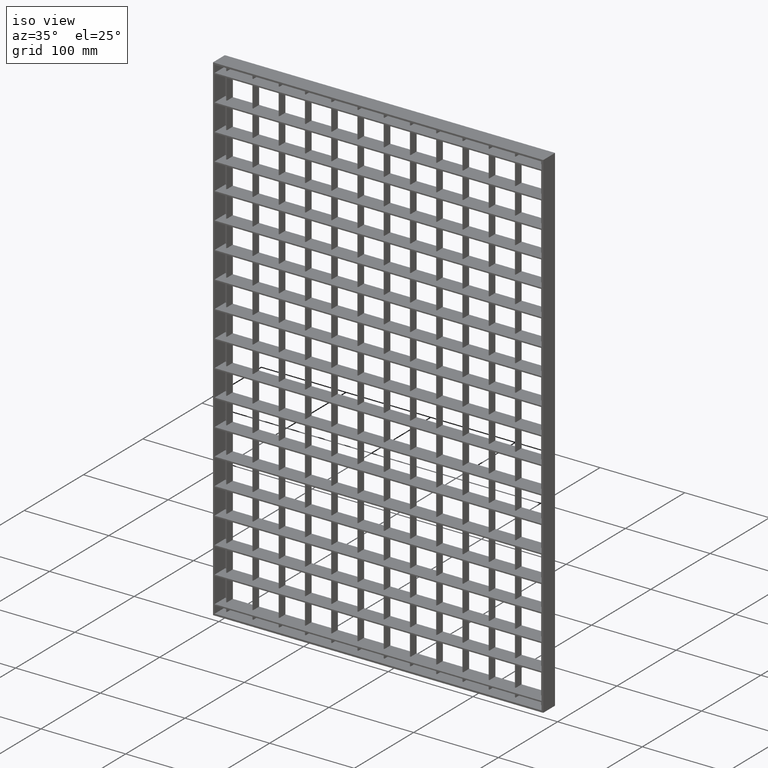
[diagram: clean part render]
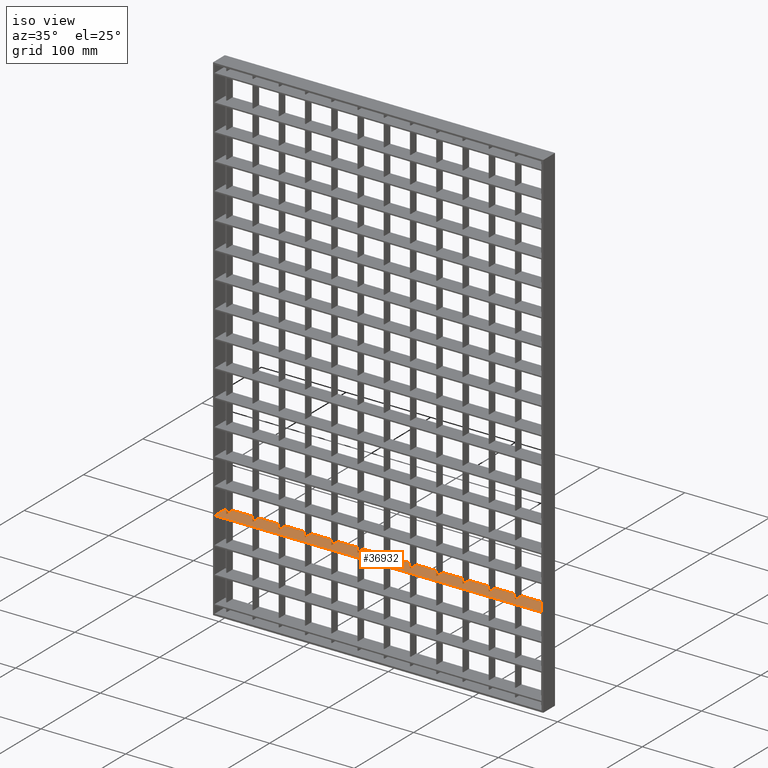
[diagram: same view with one face highlighted and labeled with its STEP entity id]
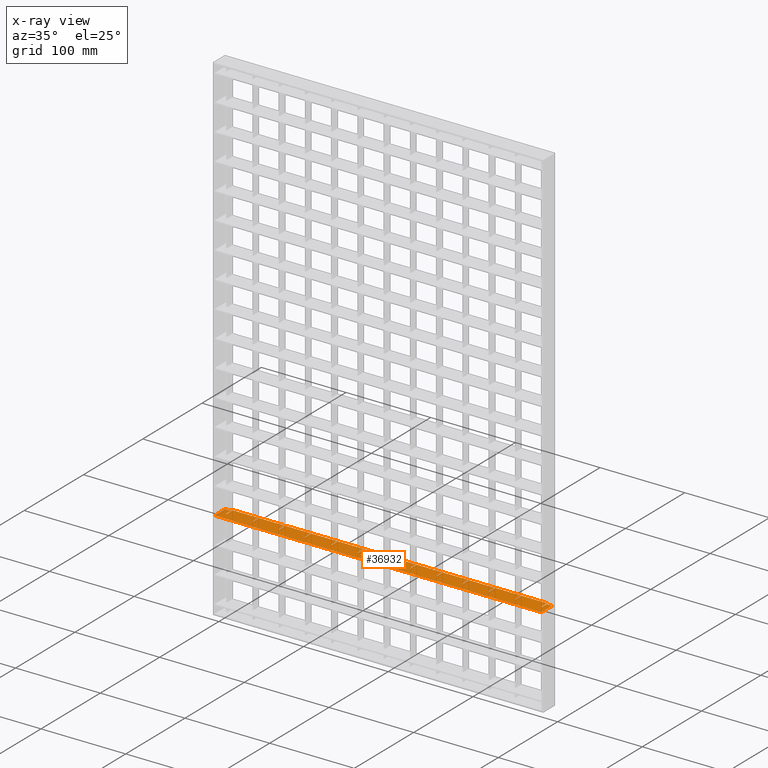
[diagram: x-ray of the same camera — body ghosted, the highlighted face saturated]
A machine part, iso view. The second image highlights one B-rep face of the part: STEP entity #36932.
The next image is the same camera in x-ray: the body ghosted, the highlighted face saturated — about 0% of this face is hidden behind the body in this view.
In plain terms, the highlighted planar face has unit normal (0, 0, -1).
Its self-contained STEP definition (entity closure, byte-faithful):
#75 = LINE ( 'NONE', #7138, #37852 ) ;
#119 = VECTOR ( 'NONE', #24408, 1000.000000000000000 ) ;
#349 = VECTOR ( 'NONE', #14450, 1000.000000000000000 ) ;
#431 = LINE ( 'NONE', #35232, #6725 ) ;
#468 = ORIENTED_EDGE ( 'NONE', *, *, #16384, .T. ) ;
#477 = CARTESIAN_POINT ( 'NONE',  ( 226.5000000000000000, 10.00000000000006600, -483.2499999999995500 ) ) ;
#498 = EDGE_CURVE ( 'NONE', #6342, #18673, #23920, .T. ) ;
#748 = ORIENTED_EDGE ( 'NONE', *, *, #28232, .T. ) ;
#903 = CARTESIAN_POINT ( 'NONE',  ( 288.5000000000001100, -9.999999999999879200, -483.2499999999995500 ) ) ;
#922 = DIRECTION ( 'NONE',  ( -1.000000000000000000, -3.061616997868383100E-016, 0.0000000000000000000 ) ) ;
#968 = VERTEX_POINT ( 'NONE', #29824 ) ;
#1166 = VERTEX_POINT ( 'NONE', #39686 ) ;
#1200 = ORIENTED_EDGE ( 'NONE', *, *, #32475, .F. ) ;
#1325 = AXIS2_PLACEMENT_3D ( 'NONE', #27476, #18428, #2864 ) ;
#1379 = LINE ( 'NONE', #1394, #32840 ) ;
#1394 = CARTESIAN_POINT ( 'NONE',  ( 408.0561711201315800, -6.938893903907228400E-015, -483.2499999999995500 ) ) ;
#1735 = ORIENTED_EDGE ( 'NONE', *, *, #25731, .T. ) ;
#1863 = EDGE_CURVE ( 'NONE', #22144, #35169, #28588, .T. ) ;
#1896 = VECTOR ( 'NONE', #23178, 1000.000000000000000 ) ;
#1942 = CARTESIAN_POINT ( 'NONE',  ( 408.0561711201315800, 7.632783294297951200E-014, -483.2499999999995500 ) ) ;
#1947 = DIRECTION ( 'NONE',  ( -1.000000000000000000, -3.061616997868383100E-016, 0.0000000000000000000 ) ) ;
#2015 = CARTESIAN_POINT ( 'NONE',  ( 225.5000000000000000, 10.00000000000006600, -483.2499999999995500 ) ) ;
#2079 = CARTESIAN_POINT ( 'NONE',  ( 2.000000000000003600, -10.00000000000000000, -483.2499999999995500 ) ) ;
#2130 = DIRECTION ( 'NONE',  ( 0.0000000000000000000, 1.000000000000000000, 0.0000000000000000000 ) ) ;
#2141 = EDGE_CURVE ( 'NONE', #22144, #968, #16480, .T. ) ;
#2166 = ORIENTED_EDGE ( 'NONE', *, *, #28526, .F. ) ;
#2251 = ORIENTED_EDGE ( 'NONE', *, *, #16209, .F. ) ;
#2262 = CARTESIAN_POINT ( 'NONE',  ( 225.5000000000000000, 1.006284330175756500E-015, -483.2499999999995500 ) ) ;
#2291 = EDGE_CURVE ( 'NONE', #24390, #39347, #30975, .T. ) ;
#2432 = CARTESIAN_POINT ( 'NONE',  ( 382.0000000000000000, 8.000000000000001800, -483.2499999999995500 ) ) ;
#2502 = CARTESIAN_POINT ( 'NONE',  ( 318.5000000000000000, -9.999999999999879200, -483.2499999999995500 ) ) ;
#2585 = DIRECTION ( 'NONE',  ( -1.000000000000000000, -3.061616997868383100E-016, 0.0000000000000000000 ) ) ;
#2751 = CARTESIAN_POINT ( 'NONE',  ( 408.0561711201315800, 10.00000000000012100, -483.2499999999995500 ) ) ;
#2864 = DIRECTION ( 'NONE',  ( -1.000000000000000000, 0.0000000000000000000, -0.0000000000000000000 ) ) ;
#3001 = VECTOR ( 'NONE', #34466, 1000.000000000000000 ) ;
#3010 = EDGE_CURVE ( 'NONE', #20909, #35940, #13504, .T. ) ;
#3067 = EDGE_CURVE ( 'NONE', #16187, #20271, #10114, .T. ) ;
#3131 = CARTESIAN_POINT ( 'NONE',  ( 256.5000000000000600, 1.006284330175756500E-015, -483.2499999999995500 ) ) ;
#3140 = CARTESIAN_POINT ( 'NONE',  ( 39.49999999999997900, -9.999999999999879200, -483.2499999999995500 ) ) ;
#3304 = CARTESIAN_POINT ( 'NONE',  ( 408.0561711201315800, 10.00000000000012100, -483.2499999999995500 ) ) ;
#3704 = ORIENTED_EDGE ( 'NONE', *, *, #10273, .F. ) ;
#4053 = ORIENTED_EDGE ( 'NONE', *, *, #39739, .T. ) ;
#4144 = CARTESIAN_POINT ( 'NONE',  ( 408.0561711201315800, 10.00000000000012100, -483.2499999999995500 ) ) ;
#4164 = CARTESIAN_POINT ( 'NONE',  ( 408.0561711201315800, 6.765421556309547700E-014, -483.2499999999995500 ) ) ;
#4199 = VERTEX_POINT ( 'NONE', #21484 ) ;
#4216 = ORIENTED_EDGE ( 'NONE', *, *, #5027, .F. ) ;
#4234 = CARTESIAN_POINT ( 'NONE',  ( 9.500000000000008900, -9.999999999999879200, -483.2499999999995500 ) ) ;
#4464 = DIRECTION ( 'NONE',  ( 0.0000000000000000000, 1.000000000000000000, 0.0000000000000000000 ) ) ;
#4521 = DIRECTION ( 'NONE',  ( 0.0000000000000000000, -1.000000000000000000, 0.0000000000000000000 ) ) ;
#4621 = CARTESIAN_POINT ( 'NONE',  ( 408.0561711201315800, -5.377642775528102000E-014, -483.2499999999995500 ) ) ;
#4778 = VECTOR ( 'NONE', #1947, 1000.000000000000000 ) ;
#4838 = ORIENTED_EDGE ( 'NONE', *, *, #8894, .T. ) ;
#4903 = DIRECTION ( 'NONE',  ( 1.000000000000000000, -3.061616997868381200E-016, 0.0000000000000000000 ) ) ;
#5027 = EDGE_CURVE ( 'NONE', #15636, #6342, #431, .T. ) ;
#5258 = CARTESIAN_POINT ( 'NONE',  ( 225.5000000000000000, -9.999999999999879200, -483.2499999999995500 ) ) ;
#5294 = VECTOR ( 'NONE', #39091, 1000.000000000000000 ) ;
#5299 = CARTESIAN_POINT ( 'NONE',  ( 257.5000000000000600, -9.999999999999879200, -483.2499999999995500 ) ) ;
#5329 = CARTESIAN_POINT ( 'NONE',  ( 381.5000000000000600, 10.00000000000011400, -483.2499999999995500 ) ) ;
#5371 = VECTOR ( 'NONE', #16578, 1000.000000000000000 ) ;
#5546 = VECTOR ( 'NONE', #4903, 1000.000000000000000 ) ;
#5718 = ORIENTED_EDGE ( 'NONE', *, *, #2141, .T. ) ;
#5897 = DIRECTION ( 'NONE',  ( -1.000000000000000000, -3.061616997868381200E-016, 0.0000000000000000000 ) ) ;
#5901 = DIRECTION ( 'NONE',  ( -1.000000000000000000, -3.061616997868383100E-016, 0.0000000000000000000 ) ) ;
#6267 = DIRECTION ( 'NONE',  ( 0.0000000000000000000, 1.000000000000000000, 0.0000000000000000000 ) ) ;
#6285 = ORIENTED_EDGE ( 'NONE', *, *, #3067, .T. ) ;
#6342 = VERTEX_POINT ( 'NONE', #2432 ) ;
#6379 = LINE ( 'NONE', #11090, #39261 ) ;
#6403 = EDGE_CURVE ( 'NONE', #38764, #14614, #36597, .T. ) ;
#6504 = VECTOR ( 'NONE', #35943, 1000.000000000000000 ) ;
#6725 = VECTOR ( 'NONE', #16680, 1000.000000000000000 ) ;
#6773 = VECTOR ( 'NONE', #8288, 1000.000000000000000 ) ;
#6947 = LINE ( 'NONE', #17308, #38856 ) ;
#7022 = VERTEX_POINT ( 'NONE', #15498 ) ;
#7073 = LINE ( 'NONE', #4164, #31286 ) ;
#7077 = ORIENTED_EDGE ( 'NONE', *, *, #13097, .T. ) ;
#7138 = CARTESIAN_POINT ( 'NONE',  ( 408.0561711201315800, 1.144917494144692700E-013, -483.2499999999995500 ) ) ;
#7183 = EDGE_CURVE ( 'NONE', #26269, #14457, #26420, .T. ) ;
#7464 = EDGE_CURVE ( 'NONE', #29757, #24390, #13326, .T. ) ;
#7584 = VERTEX_POINT ( 'NONE', #28433 ) ;
#7650 = VECTOR ( 'NONE', #16311, 1000.000000000000000 ) ;
#7751 = LINE ( 'NONE', #22626, #1896 ) ;
#7835 = EDGE_CURVE ( 'NONE', #14479, #13939, #35064, .T. ) ;
#7881 = LINE ( 'NONE', #25263, #3001 ) ;
#7909 = ORIENTED_EDGE ( 'NONE', *, *, #3010, .T. ) ;
#8003 = LINE ( 'NONE', #12202, #36036 ) ;
#8055 = EDGE_CURVE ( 'NONE', #20909, #29516, #21022, .T. ) ;
#8227 = ORIENTED_EDGE ( 'NONE', *, *, #39910, .F. ) ;
#8288 = DIRECTION ( 'NONE',  ( 1.000000000000000000, -3.061616997868381200E-016, 0.0000000000000000000 ) ) ;
#8332 = EDGE_CURVE ( 'NONE', #15627, #18673, #33096, .T. ) ;
#8374 = VERTEX_POINT ( 'NONE', #34200 ) ;
#8589 = VECTOR ( 'NONE', #18887, 1000.000000000000000 ) ;
#8667 = VECTOR ( 'NONE', #40018, 1000.000000000000000 ) ;
#8724 = CARTESIAN_POINT ( 'NONE',  ( 195.5000000000000000, -9.999999999999879200, -483.2499999999995500 ) ) ;
#8823 = VERTEX_POINT ( 'NONE', #12074 ) ;
#8833 = EDGE_CURVE ( 'NONE', #15627, #26269, #24822, .T. ) ;
#8894 = EDGE_CURVE ( 'NONE', #26414, #26426, #31063, .T. ) ;
#8916 = CARTESIAN_POINT ( 'NONE',  ( 102.5000000000000300, 0.0000000000000000000, -483.2499999999995500 ) ) ;
#9049 = CARTESIAN_POINT ( 'NONE',  ( 71.50000000000001400, 0.0000000000000000000, -483.2499999999995500 ) ) ;
#9159 = VECTOR ( 'NONE', #5897, 1000.000000000000000 ) ;
#9278 = DIRECTION ( 'NONE',  ( -1.000000000000000000, -3.061616997868383100E-016, 0.0000000000000000000 ) ) ;
#9416 = ORIENTED_EDGE ( 'NONE', *, *, #7464, .T. ) ;
#9442 = EDGE_CURVE ( 'NONE', #4199, #13887, #13594, .T. ) ;
#9552 = VERTEX_POINT ( 'NONE', #16328 ) ;
#9750 = VECTOR ( 'NONE', #10123, 1000.000000000000000 ) ;
#9983 = DIRECTION ( 'NONE',  ( -1.000000000000000000, -3.061616997868383100E-016, 0.0000000000000000000 ) ) ;
#10021 = ORIENTED_EDGE ( 'NONE', *, *, #7835, .F. ) ;
#10114 = LINE ( 'NONE', #36177, #4778 ) ;
#10123 = DIRECTION ( 'NONE',  ( 0.0000000000000000000, 1.000000000000000000, 0.0000000000000000000 ) ) ;
#10153 = VECTOR ( 'NONE', #35659, 1000.000000000000000 ) ;
#10195 = VECTOR ( 'NONE', #39188, 1000.000000000000000 ) ;
#10261 = DIRECTION ( 'NONE',  ( -1.000000000000000000, -3.061616997868381200E-016, 0.0000000000000000000 ) ) ;
#10273 = EDGE_CURVE ( 'NONE', #39822, #33044, #20330, .T. ) ;
#10282 = EDGE_LOOP ( 'NONE', ( #3704, #39733, #1200, #11805, #22045, #19678, #32365, #5718, #31692, #12131, #33285, #30411, #27348, #8227, #10021, #19728, #2251, #29273, #29217, #7909, #20860, #27356, #2166, #7077, #36927, #1735, #30989, #6285, #25940, #12128, #21220, #14136, #13946, #24094, #748, #4838, #468, #11922, #14471, #38976, #28681, #31841, #14738, #9416, #15224, #20875, #4053, #26792, #38421, #15136, #12618, #28404, #13202, #16155, #22498, #32129, #19010, #17018, #4216, #17034 ) ) ;
#10598 = DIRECTION ( 'NONE',  ( 0.0000000000000000000, -1.000000000000000000, 0.0000000000000000000 ) ) ;
#10955 = CARTESIAN_POINT ( 'NONE',  ( 101.4999999999999900, 1.554032748440078500E-015, -483.2499999999995500 ) ) ;
#11033 = EDGE_CURVE ( 'NONE', #15636, #33044, #13971, .T. ) ;
#11090 = CARTESIAN_POINT ( 'NONE',  ( 70.50000000000000000, -9.999999999999879200, -483.2499999999995500 ) ) ;
#11161 = VERTEX_POINT ( 'NONE', #16126 ) ;
#11353 = CARTESIAN_POINT ( 'NONE',  ( 408.0561711201315800, 1.040834085586084300E-013, -483.2499999999995500 ) ) ;
#11718 = LINE ( 'NONE', #4621, #17023 ) ;
#11773 = CARTESIAN_POINT ( 'NONE',  ( 226.5000000000000300, 1.809118201648508700E-015, -483.2499999999995500 ) ) ;
#11805 = ORIENTED_EDGE ( 'NONE', *, *, #19020, .T. ) ;
#11922 = ORIENTED_EDGE ( 'NONE', *, *, #13801, .T. ) ;
#12027 = CARTESIAN_POINT ( 'NONE',  ( 388.0000000000000000, -9.999999999999879200, -483.2499999999995500 ) ) ;
#12069 = CARTESIAN_POINT ( 'NONE',  ( 349.5000000000000600, -9.999999999999879200, -483.2499999999995500 ) ) ;
#12074 = CARTESIAN_POINT ( 'NONE',  ( 39.49999999999997900, 1.653965597400999300E-015, -483.2499999999995500 ) ) ;
#12128 = ORIENTED_EDGE ( 'NONE', *, *, #21206, .T. ) ;
#12131 = ORIENTED_EDGE ( 'NONE', *, *, #16211, .F. ) ;
#12194 = CARTESIAN_POINT ( 'NONE',  ( 101.5000000000000000, 10.00000000000000200, -483.2499999999995500 ) ) ;
#12202 = CARTESIAN_POINT ( 'NONE',  ( 408.0561711201315800, 10.00000000000012100, -483.2499999999995500 ) ) ;
#12351 = DIRECTION ( 'NONE',  ( -1.000000000000000000, -3.061616997868383100E-016, 0.0000000000000000000 ) ) ;
#12391 = EDGE_CURVE ( 'NONE', #9552, #26440, #28321, .T. ) ;
#12423 = CARTESIAN_POINT ( 'NONE',  ( 164.5000000000000000, 0.0000000000000000000, -483.2499999999995500 ) ) ;
#12496 = DIRECTION ( 'NONE',  ( -1.000000000000000000, -3.061616997868381200E-016, 0.0000000000000000000 ) ) ;
#12559 = VECTOR ( 'NONE', #5901, 1000.000000000000000 ) ;
#12618 = ORIENTED_EDGE ( 'NONE', *, *, #28403, .T. ) ;
#12656 = CARTESIAN_POINT ( 'NONE',  ( 71.50000000000001400, -9.999999999999879200, -483.2499999999995500 ) ) ;
#12755 = VERTEX_POINT ( 'NONE', #9049 ) ;
#12889 = EDGE_CURVE ( 'NONE', #35169, #27724, #13789, .T. ) ;
#13067 = CARTESIAN_POINT ( 'NONE',  ( 408.0561711201315800, 10.00000000000012100, -483.2499999999995500 ) ) ;
#13097 = EDGE_CURVE ( 'NONE', #29982, #23493, #29219, .T. ) ;
#13202 = ORIENTED_EDGE ( 'NONE', *, *, #19553, .F. ) ;
#13231 = DIRECTION ( 'NONE',  ( 0.0000000000000000000, 1.000000000000000000, 0.0000000000000000000 ) ) ;
#13326 = LINE ( 'NONE', #30360, #29250 ) ;
#13454 = VERTEX_POINT ( 'NONE', #24396 ) ;
#13504 = LINE ( 'NONE', #23221, #10153 ) ;
#13530 = VECTOR ( 'NONE', #22790, 1000.000000000000000 ) ;
#13594 = LINE ( 'NONE', #18924, #31994 ) ;
#13789 = LINE ( 'NONE', #22126, #38444 ) ;
#13801 = EDGE_CURVE ( 'NONE', #19812, #38764, #16603, .T. ) ;
#13856 = CARTESIAN_POINT ( 'NONE',  ( 40.49999999999997900, 0.0000000000000000000, -483.2499999999995500 ) ) ;
#13868 = DIRECTION ( 'NONE',  ( -1.000000000000000000, -3.061616997868383100E-016, 0.0000000000000000000 ) ) ;
#13887 = VERTEX_POINT ( 'NONE', #38812 ) ;
#13911 = CARTESIAN_POINT ( 'NONE',  ( 256.5000000000000600, -9.999999999999879200, -483.2499999999995500 ) ) ;
#13939 = VERTEX_POINT ( 'NONE', #36651 ) ;
#13946 = ORIENTED_EDGE ( 'NONE', *, *, #9442, .T. ) ;
#13971 = LINE ( 'NONE', #3304, #12559 ) ;
#14128 = VECTOR ( 'NONE', #12351, 1000.000000000000000 ) ;
#14136 = ORIENTED_EDGE ( 'NONE', *, *, #32818, .T. ) ;
#14217 = LINE ( 'NONE', #39898, #38376 ) ;
#14224 = CARTESIAN_POINT ( 'NONE',  ( 408.0561711201315800, -2.602085213965210600E-014, -483.2499999999995500 ) ) ;
#14405 = CARTESIAN_POINT ( 'NONE',  ( 382.0000000000000000, 10.00000000000000400, -483.2499999999995500 ) ) ;
#14450 = DIRECTION ( 'NONE',  ( 0.0000000000000000000, -1.000000000000000000, 0.0000000000000000000 ) ) ;
#14457 = VERTEX_POINT ( 'NONE', #31730 ) ;
#14470 = DIRECTION ( 'NONE',  ( 0.0000000000000000000, 1.000000000000000000, 0.0000000000000000000 ) ) ;
#14471 = ORIENTED_EDGE ( 'NONE', *, *, #6403, .T. ) ;
#14479 = VERTEX_POINT ( 'NONE', #16291 ) ;
#14614 = VERTEX_POINT ( 'NONE', #12194 ) ;
#14738 = ORIENTED_EDGE ( 'NONE', *, *, #19664, .T. ) ;
#15136 = ORIENTED_EDGE ( 'NONE', *, *, #27633, .T. ) ;
#15224 = ORIENTED_EDGE ( 'NONE', *, *, #2291, .T. ) ;
#15278 = VECTOR ( 'NONE', #13231, 1000.000000000000000 ) ;
#15334 = DIRECTION ( 'NONE',  ( 0.0000000000000000000, -1.000000000000000000, 0.0000000000000000000 ) ) ;
#15367 = CARTESIAN_POINT ( 'NONE',  ( 163.5000000000000000, 10.00000000000000200, -483.2499999999995500 ) ) ;
#15385 = DIRECTION ( 'NONE',  ( 0.0000000000000000000, 1.000000000000000000, 0.0000000000000000000 ) ) ;
#15435 = EDGE_CURVE ( 'NONE', #35216, #16187, #24741, .T. ) ;
#15453 = CARTESIAN_POINT ( 'NONE',  ( 288.5000000000001100, 10.00000000000008500, -483.2499999999995500 ) ) ;
#15491 = EDGE_CURVE ( 'NONE', #30804, #17739, #22792, .T. ) ;
#15498 = CARTESIAN_POINT ( 'NONE',  ( 70.49999999999995700, 7.366374349321292100E-016, -483.2499999999995500 ) ) ;
#15627 = VERTEX_POINT ( 'NONE', #23487 ) ;
#15636 = VERTEX_POINT ( 'NONE', #14405 ) ;
#15701 = VERTEX_POINT ( 'NONE', #23879 ) ;
#15763 = LINE ( 'NONE', #3140, #34652 ) ;
#15992 = VERTEX_POINT ( 'NONE', #22490 ) ;
#16061 = LINE ( 'NONE', #32461, #19471 ) ;
#16077 = EDGE_CURVE ( 'NONE', #14614, #23738, #7751, .T. ) ;
#16126 = CARTESIAN_POINT ( 'NONE',  ( 195.5000000000000000, 0.0000000000000000000, -483.2499999999995500 ) ) ;
#16144 = EDGE_CURVE ( 'NONE', #17739, #37171, #33882, .T. ) ;
#16155 = ORIENTED_EDGE ( 'NONE', *, *, #22267, .F. ) ;
#16187 = VERTEX_POINT ( 'NONE', #38416 ) ;
#16209 = EDGE_CURVE ( 'NONE', #15701, #19945, #21748, .T. ) ;
#16211 = EDGE_CURVE ( 'NONE', #7584, #32675, #37725, .T. ) ;
#16266 = EDGE_CURVE ( 'NONE', #29516, #15701, #21529, .T. ) ;
#16291 = CARTESIAN_POINT ( 'NONE',  ( 287.5000000000001100, 10.00000000000008500, -483.2499999999995500 ) ) ;
#16306 = VECTOR ( 'NONE', #37936, 1000.000000000000000 ) ;
#16311 = DIRECTION ( 'NONE',  ( -1.000000000000000000, -3.061616997868381200E-016, 0.0000000000000000000 ) ) ;
#16315 = DIRECTION ( 'NONE',  ( -1.000000000000000000, -3.061616997868381200E-016, 0.0000000000000000000 ) ) ;
#16328 = CARTESIAN_POINT ( 'NONE',  ( 288.5000000000001100, 1.909051050609410800E-015, -483.2499999999995500 ) ) ;
#16369 = CARTESIAN_POINT ( 'NONE',  ( 9.500000000000008900, 0.0000000000000000000, -483.2499999999995500 ) ) ;
#16384 = EDGE_CURVE ( 'NONE', #26426, #19812, #14217, .T. ) ;
#16480 = LINE ( 'NONE', #38256, #25703 ) ;
#16482 = CARTESIAN_POINT ( 'NONE',  ( 8.500000000000007100, -9.999999999999879200, -483.2499999999995500 ) ) ;
#16578 = DIRECTION ( 'NONE',  ( -1.000000000000000000, -3.061616997868383100E-016, 0.0000000000000000000 ) ) ;
#16603 = LINE ( 'NONE', #32757, #35486 ) ;
#16680 = DIRECTION ( 'NONE',  ( 0.0000000000000000000, -1.000000000000000000, 0.0000000000000000000 ) ) ;
#17018 = ORIENTED_EDGE ( 'NONE', *, *, #498, .F. ) ;
#17023 = VECTOR ( 'NONE', #39080, 1000.000000000000000 ) ;
#17034 = ORIENTED_EDGE ( 'NONE', *, *, #11033, .T. ) ;
#17077 = DIRECTION ( 'NONE',  ( 1.000000000000000000, -3.061616997868381200E-016, 0.0000000000000000000 ) ) ;
#17240 = VECTOR ( 'NONE', #18661, 1000.000000000000000 ) ;
#17308 = CARTESIAN_POINT ( 'NONE',  ( 2.000000000000003600, 8.000000000000001800, -483.2499999999995500 ) ) ;
#17399 = VECTOR ( 'NONE', #14470, 1000.000000000000000 ) ;
#17652 = EDGE_CURVE ( 'NONE', #15992, #33770, #39486, .T. ) ;
#17739 = VERTEX_POINT ( 'NONE', #22347 ) ;
#17925 = VERTEX_POINT ( 'NONE', #20197 ) ;
#18037 = PLANE ( 'NONE',  #1325 ) ;
#18142 = VECTOR ( 'NONE', #9278, 1000.000000000000000 ) ;
#18337 = LINE ( 'NONE', #8724, #30966 ) ;
#18428 = DIRECTION ( 'NONE',  ( 0.0000000000000000000, 0.0000000000000000000, -1.000000000000000000 ) ) ;
#18449 = VECTOR ( 'NONE', #34247, 1000.000000000000000 ) ;
#18537 = EDGE_CURVE ( 'NONE', #12755, #7022, #30684, .T. ) ;
#18563 = VECTOR ( 'NONE', #32057, 1000.000000000000000 ) ;
#18661 = DIRECTION ( 'NONE',  ( 0.0000000000000000000, 1.000000000000000000, 0.0000000000000000000 ) ) ;
#18673 = VERTEX_POINT ( 'NONE', #29973 ) ;
#18801 = CARTESIAN_POINT ( 'NONE',  ( 101.5000000000000300, -9.999999999999879200, -483.2499999999995500 ) ) ;
#18822 = DIRECTION ( 'NONE',  ( -1.000000000000000000, -3.061616997868383100E-016, 0.0000000000000000000 ) ) ;
#18887 = DIRECTION ( 'NONE',  ( 0.0000000000000000000, 1.000000000000000000, 0.0000000000000000000 ) ) ;
#18924 = CARTESIAN_POINT ( 'NONE',  ( 133.5000000000000000, -9.999999999999879200, -483.2499999999995500 ) ) ;
#19010 = ORIENTED_EDGE ( 'NONE', *, *, #8332, .T. ) ;
#19020 = EDGE_CURVE ( 'NONE', #8374, #33471, #30167, .T. ) ;
#19027 = CARTESIAN_POINT ( 'NONE',  ( 256.5000000000000600, 10.00000000000007500, -483.2499999999995500 ) ) ;
#19096 = CARTESIAN_POINT ( 'NONE',  ( 194.5000000000000000, 2.271495212987119600E-015, -483.2499999999995500 ) ) ;
#19471 = VECTOR ( 'NONE', #25990, 1000.000000000000000 ) ;
#19553 = EDGE_CURVE ( 'NONE', #1166, #33770, #16061, .T. ) ;
#19568 = CARTESIAN_POINT ( 'NONE',  ( 194.5000000000000000, -9.999999999999879200, -483.2499999999995500 ) ) ;
#19664 = EDGE_CURVE ( 'NONE', #7022, #29757, #6379, .T. ) ;
#19678 = ORIENTED_EDGE ( 'NONE', *, *, #12889, .F. ) ;
#19728 = ORIENTED_EDGE ( 'NONE', *, *, #38420, .T. ) ;
#19806 = CARTESIAN_POINT ( 'NONE',  ( 195.5000000000000000, 10.00000000000005500, -483.2499999999995500 ) ) ;
#19812 = VERTEX_POINT ( 'NONE', #8916 ) ;
#19838 = CARTESIAN_POINT ( 'NONE',  ( 408.0561711201315800, 10.00000000000012100, -483.2499999999995500 ) ) ;
#19935 = CARTESIAN_POINT ( 'NONE',  ( 408.0561711201315800, -3.469446951953614200E-014, -483.2499999999995500 ) ) ;
#19945 = VERTEX_POINT ( 'NONE', #37018 ) ;
#19985 = VERTEX_POINT ( 'NONE', #12423 ) ;
#20197 = CARTESIAN_POINT ( 'NONE',  ( 8.500000000000007100, 8.365702838930499200E-016, -483.2499999999995500 ) ) ;
#20271 = VERTEX_POINT ( 'NONE', #38197 ) ;
#20330 = LINE ( 'NONE', #36371, #17399 ) ;
#20860 = ORIENTED_EDGE ( 'NONE', *, *, #39003, .F. ) ;
#20875 = ORIENTED_EDGE ( 'NONE', *, *, #31635, .T. ) ;
#20909 = VERTEX_POINT ( 'NONE', #19027 ) ;
#20926 = VERTEX_POINT ( 'NONE', #28459 ) ;
#21022 = LINE ( 'NONE', #13911, #18563 ) ;
#21140 = DIRECTION ( 'NONE',  ( 0.0000000000000000000, -1.000000000000000000, 0.0000000000000000000 ) ) ;
#21206 = EDGE_CURVE ( 'NONE', #19985, #13454, #39110, .T. ) ;
#21220 = ORIENTED_EDGE ( 'NONE', *, *, #39119, .T. ) ;
#21245 = CARTESIAN_POINT ( 'NONE',  ( 8.000000000000007100, 9.999999999999998200, -483.2499999999995500 ) ) ;
#21336 = EDGE_CURVE ( 'NONE', #23738, #12755, #36215, .T. ) ;
#21484 = CARTESIAN_POINT ( 'NONE',  ( 133.5000000000000000, 10.00000000000003900, -483.2499999999995500 ) ) ;
#21529 = LINE ( 'NONE', #23699, #5546 ) ;
#21587 = CARTESIAN_POINT ( 'NONE',  ( 39.50000000000000700, 10.00000000000000200, -483.2499999999995500 ) ) ;
#21748 = LINE ( 'NONE', #5299, #5294 ) ;
#22045 = ORIENTED_EDGE ( 'NONE', *, *, #25715, .F. ) ;
#22126 = CARTESIAN_POINT ( 'NONE',  ( 408.0561711201315800, -1.561251128379126400E-014, -483.2499999999995500 ) ) ;
#22144 = VERTEX_POINT ( 'NONE', #31922 ) ;
#22176 = VECTOR ( 'NONE', #15334, 1000.000000000000000 ) ;
#22261 = DIRECTION ( 'NONE',  ( 1.000000000000000000, -3.061616997868381200E-016, 0.0000000000000000000 ) ) ;
#22267 = EDGE_CURVE ( 'NONE', #14457, #1166, #6947, .T. ) ;
#22347 = CARTESIAN_POINT ( 'NONE',  ( 9.500000000000008900, 10.00000000000000000, -483.2499999999995500 ) ) ;
#22490 = CARTESIAN_POINT ( 'NONE',  ( 8.500000000000007100, 10.00000000000000200, -483.2499999999995500 ) ) ;
#22498 = ORIENTED_EDGE ( 'NONE', *, *, #7183, .F. ) ;
#22612 = LINE ( 'NONE', #28065, #16306 ) ;
#22626 = CARTESIAN_POINT ( 'NONE',  ( 408.0561711201315800, 10.00000000000012100, -483.2499999999995500 ) ) ;
#22790 = DIRECTION ( 'NONE',  ( -1.000000000000000000, -3.061616997868383100E-016, 0.0000000000000000000 ) ) ;
#22792 = LINE ( 'NONE', #4144, #5371 ) ;
#22985 = VECTOR ( 'NONE', #15385, 1000.000000000000000 ) ;
#23101 = CARTESIAN_POINT ( 'NONE',  ( 2.000000000000003600, -10.00000000000000000, -483.2499999999995500 ) ) ;
#23158 = CARTESIAN_POINT ( 'NONE',  ( 70.50000000000000000, 10.00000000000000200, -483.2499999999995500 ) ) ;
#23178 = DIRECTION ( 'NONE',  ( -1.000000000000000000, -3.061616997868383100E-016, 0.0000000000000000000 ) ) ;
#23221 = CARTESIAN_POINT ( 'NONE',  ( 408.0561711201315800, 10.00000000000012100, -483.2499999999995500 ) ) ;
#23487 = CARTESIAN_POINT ( 'NONE',  ( 388.0000000000000000, -10.00000000000000400, -483.2499999999995500 ) ) ;
#23493 = VERTEX_POINT ( 'NONE', #19806 ) ;
#23538 = LINE ( 'NONE', #28892, #15278 ) ;
#23676 = LINE ( 'NONE', #34105, #8667 ) ;
#23699 = CARTESIAN_POINT ( 'NONE',  ( 408.0561711201315800, -4.510281037539698400E-014, -483.2499999999995500 ) ) ;
#23731 = VERTEX_POINT ( 'NONE', #30827 ) ;
#23738 = VERTEX_POINT ( 'NONE', #27827 ) ;
#23879 = CARTESIAN_POINT ( 'NONE',  ( 257.5000000000000600, 9.917228881405591400E-016, -483.2499999999995500 ) ) ;
#23920 = LINE ( 'NONE', #30282, #35527 ) ;
#24094 = ORIENTED_EDGE ( 'NONE', *, *, #35845, .T. ) ;
#24390 = VERTEX_POINT ( 'NONE', #31178 ) ;
#24396 = CARTESIAN_POINT ( 'NONE',  ( 163.5000000000000000, 1.454099899479170100E-015, -483.2499999999995500 ) ) ;
#24408 = DIRECTION ( 'NONE',  ( -1.000000000000000000, -3.061616997868383100E-016, 0.0000000000000000000 ) ) ;
#24526 = EDGE_CURVE ( 'NONE', #35554, #39822, #1379, .T. ) ;
#24741 = LINE ( 'NONE', #19568, #9750 ) ;
#24822 = LINE ( 'NONE', #36944, #31108 ) ;
#24893 = DIRECTION ( 'NONE',  ( 0.0000000000000000000, -1.000000000000000000, 0.0000000000000000000 ) ) ;
#24921 = CARTESIAN_POINT ( 'NONE',  ( 408.0561711201315800, 10.00000000000012100, -483.2499999999995500 ) ) ;
#25201 = CARTESIAN_POINT ( 'NONE',  ( 350.5000000000000600, 2.008983899570346800E-015, -483.2499999999995500 ) ) ;
#25204 = CARTESIAN_POINT ( 'NONE',  ( 408.0561711201315800, 10.00000000000012100, -483.2499999999995500 ) ) ;
#25263 = CARTESIAN_POINT ( 'NONE',  ( 164.5000000000000000, -9.999999999999879200, -483.2499999999995500 ) ) ;
#25333 = VECTOR ( 'NONE', #13868, 1000.000000000000000 ) ;
#25703 = VECTOR ( 'NONE', #922, 1000.000000000000000 ) ;
#25715 = EDGE_CURVE ( 'NONE', #27724, #33471, #23538, .T. ) ;
#25731 = EDGE_CURVE ( 'NONE', #11161, #35216, #7073, .T. ) ;
#25845 = VECTOR ( 'NONE', #36619, 1000.000000000000000 ) ;
#25923 = CARTESIAN_POINT ( 'NONE',  ( 408.0561711201315800, 10.00000000000012100, -483.2499999999995500 ) ) ;
#25940 = ORIENTED_EDGE ( 'NONE', *, *, #31513, .T. ) ;
#25990 = DIRECTION ( 'NONE',  ( 0.0000000000000000000, 1.000000000000000000, 0.0000000000000000000 ) ) ;
#26269 = VERTEX_POINT ( 'NONE', #2079 ) ;
#26273 = DIRECTION ( 'NONE',  ( -1.000000000000000000, -3.061616997868381200E-016, 0.0000000000000000000 ) ) ;
#26414 = VERTEX_POINT ( 'NONE', #34024 ) ;
#26420 = LINE ( 'NONE', #23101, #36560 ) ;
#26426 = VERTEX_POINT ( 'NONE', #36571 ) ;
#26440 = VERTEX_POINT ( 'NONE', #15453 ) ;
#26792 = ORIENTED_EDGE ( 'NONE', *, *, #15491, .T. ) ;
#27287 = VECTOR ( 'NONE', #29960, 1000.000000000000000 ) ;
#27297 = DIRECTION ( 'NONE',  ( 1.000000000000000000, 0.0000000000000000000, 0.0000000000000000000 ) ) ;
#27331 = VECTOR ( 'NONE', #17077, 1000.000000000000000 ) ;
#27348 = ORIENTED_EDGE ( 'NONE', *, *, #12391, .F. ) ;
#27356 = ORIENTED_EDGE ( 'NONE', *, *, #33613, .F. ) ;
#27476 = CARTESIAN_POINT ( 'NONE',  ( 408.0561711201315800, -9.999999999999879200, -483.2499999999995500 ) ) ;
#27633 = EDGE_CURVE ( 'NONE', #37171, #17925, #38703, .T. ) ;
#27669 = CARTESIAN_POINT ( 'NONE',  ( 226.5000000000000000, -9.999999999999879200, -483.2499999999995500 ) ) ;
#27724 = VERTEX_POINT ( 'NONE', #25201 ) ;
#27827 = CARTESIAN_POINT ( 'NONE',  ( 71.50000000000005700, 10.00000000000002000, -483.2499999999995500 ) ) ;
#28065 = CARTESIAN_POINT ( 'NONE',  ( 163.5000000000000000, -9.999999999999879200, -483.2499999999995500 ) ) ;
#28232 = EDGE_CURVE ( 'NONE', #23731, #26414, #23676, .T. ) ;
#28321 = LINE ( 'NONE', #903, #36112 ) ;
#28403 = EDGE_CURVE ( 'NONE', #17925, #15992, #39602, .T. ) ;
#28404 = ORIENTED_EDGE ( 'NONE', *, *, #17652, .T. ) ;
#28411 = LINE ( 'NONE', #27669, #8589 ) ;
#28433 = CARTESIAN_POINT ( 'NONE',  ( 318.5000000000000000, 1.006284330175756500E-015, -483.2499999999995500 ) ) ;
#28459 = CARTESIAN_POINT ( 'NONE',  ( 318.5000000000000000, 10.00000000000009400, -483.2499999999995500 ) ) ;
#28526 = EDGE_CURVE ( 'NONE', #29982, #38910, #34276, .T. ) ;
#28588 = LINE ( 'NONE', #12069, #18449 ) ;
#28679 = LINE ( 'NONE', #2751, #119 ) ;
#28681 = ORIENTED_EDGE ( 'NONE', *, *, #21336, .T. ) ;
#28704 = DIRECTION ( 'NONE',  ( 1.000000000000000000, -3.061616997868381200E-016, 0.0000000000000000000 ) ) ;
#28709 = LINE ( 'NONE', #2502, #27287 ) ;
#28802 = LINE ( 'NONE', #19935, #27331 ) ;
#28806 = VERTEX_POINT ( 'NONE', #15367 ) ;
#28892 = CARTESIAN_POINT ( 'NONE',  ( 350.5000000000000600, -9.999999999999879200, -483.2499999999995500 ) ) ;
#28958 = VECTOR ( 'NONE', #4464, 1000.000000000000000 ) ;
#29032 = VECTOR ( 'NONE', #35811, 1000.000000000000000 ) ;
#29217 = ORIENTED_EDGE ( 'NONE', *, *, #8055, .F. ) ;
#29219 = LINE ( 'NONE', #13067, #33605 ) ;
#29250 = VECTOR ( 'NONE', #39562, 1000.000000000000000 ) ;
#29273 = ORIENTED_EDGE ( 'NONE', *, *, #16266, .F. ) ;
#29459 = DIRECTION ( 'NONE',  ( 1.000000000000000000, 0.0000000000000000000, 0.0000000000000000000 ) ) ;
#29516 = VERTEX_POINT ( 'NONE', #3131 ) ;
#29556 = DIRECTION ( 'NONE',  ( 0.0000000000000000000, 1.000000000000000000, 0.0000000000000000000 ) ) ;
#29575 = CARTESIAN_POINT ( 'NONE',  ( 380.5000000000000600, -9.999999999999879200, -483.2499999999995500 ) ) ;
#29593 = CARTESIAN_POINT ( 'NONE',  ( 40.49999999999997900, -9.999999999999879200, -483.2499999999995500 ) ) ;
#29757 = VERTEX_POINT ( 'NONE', #23158 ) ;
#29824 = CARTESIAN_POINT ( 'NONE',  ( 319.5000000000000000, 10.00000000000009400, -483.2499999999995500 ) ) ;
#29943 = VERTEX_POINT ( 'NONE', #11773 ) ;
#29960 = DIRECTION ( 'NONE',  ( 0.0000000000000000000, -1.000000000000000000, 0.0000000000000000000 ) ) ;
#29973 = CARTESIAN_POINT ( 'NONE',  ( 387.9999999999998900, 8.000000000000001800, -483.2499999999996000 ) ) ;
#29982 = VERTEX_POINT ( 'NONE', #2015 ) ;
#30167 = LINE ( 'NONE', #19838, #25333 ) ;
#30282 = CARTESIAN_POINT ( 'NONE',  ( 194.9999999999999700, 8.000000000000001800, -483.2499999999995500 ) ) ;
#30360 = CARTESIAN_POINT ( 'NONE',  ( 408.0561711201315800, 10.00000000000012100, -483.2499999999995500 ) ) ;
#30411 = ORIENTED_EDGE ( 'NONE', *, *, #40156, .T. ) ;
#30683 = EDGE_CURVE ( 'NONE', #20926, #7584, #28709, .T. ) ;
#30684 = LINE ( 'NONE', #11353, #6504 ) ;
#30804 = VERTEX_POINT ( 'NONE', #21587 ) ;
#30827 = CARTESIAN_POINT ( 'NONE',  ( 132.5000000000000000, 6.367045859712331600E-016, -483.2499999999995500 ) ) ;
#30966 = VECTOR ( 'NONE', #37099, 1000.000000000000000 ) ;
#30975 = LINE ( 'NONE', #29593, #10195 ) ;
#30989 = ORIENTED_EDGE ( 'NONE', *, *, #15435, .T. ) ;
#31063 = LINE ( 'NONE', #24921, #14128 ) ;
#31108 = VECTOR ( 'NONE', #18822, 1000.000000000000000 ) ;
#31178 = CARTESIAN_POINT ( 'NONE',  ( 40.50000000000003600, 10.00000000000000900, -483.2499999999995500 ) ) ;
#31286 = VECTOR ( 'NONE', #16315, 1000.000000000000000 ) ;
#31443 = VECTOR ( 'NONE', #10598, 1000.000000000000000 ) ;
#31513 = EDGE_CURVE ( 'NONE', #20271, #19985, #7881, .T. ) ;
#31635 = EDGE_CURVE ( 'NONE', #39347, #8823, #75, .T. ) ;
#31692 = ORIENTED_EDGE ( 'NONE', *, *, #37603, .F. ) ;
#31730 = CARTESIAN_POINT ( 'NONE',  ( 2.000000000000003600, 8.000000000000001800, -483.2499999999995500 ) ) ;
#31841 = ORIENTED_EDGE ( 'NONE', *, *, #18537, .T. ) ;
#31922 = CARTESIAN_POINT ( 'NONE',  ( 349.5000000000000600, 10.00000000000010500, -483.2499999999995500 ) ) ;
#31935 = VECTOR ( 'NONE', #12496, 1000.000000000000000 ) ;
#31994 = VECTOR ( 'NONE', #24893, 1000.000000000000000 ) ;
#32057 = DIRECTION ( 'NONE',  ( 0.0000000000000000000, -1.000000000000000000, 0.0000000000000000000 ) ) ;
#32129 = ORIENTED_EDGE ( 'NONE', *, *, #8833, .F. ) ;
#32334 = LINE ( 'NONE', #34089, #7650 ) ;
#32365 = ORIENTED_EDGE ( 'NONE', *, *, #1863, .F. ) ;
#32461 = CARTESIAN_POINT ( 'NONE',  ( 7.999999999999996400, 8.000000000000001800, -483.2499999999995500 ) ) ;
#32475 = EDGE_CURVE ( 'NONE', #8374, #35554, #40173, .T. ) ;
#32650 = CARTESIAN_POINT ( 'NONE',  ( 287.5000000000001100, -9.999999999999879200, -483.2499999999995500 ) ) ;
#32675 = VERTEX_POINT ( 'NONE', #37403 ) ;
#32757 = CARTESIAN_POINT ( 'NONE',  ( 408.0561711201315800, 9.540979117872439000E-014, -483.2499999999995500 ) ) ;
#32818 = EDGE_CURVE ( 'NONE', #28806, #4199, #39671, .T. ) ;
#32840 = VECTOR ( 'NONE', #28704, 1000.000000000000000 ) ;
#33044 = VERTEX_POINT ( 'NONE', #5329 ) ;
#33096 = LINE ( 'NONE', #12027, #25845 ) ;
#33128 = EDGE_CURVE ( 'NONE', #23493, #11161, #18337, .T. ) ;
#33285 = ORIENTED_EDGE ( 'NONE', *, *, #30683, .F. ) ;
#33471 = VERTEX_POINT ( 'NONE', #34922 ) ;
#33605 = VECTOR ( 'NONE', #9983, 1000.000000000000000 ) ;
#33613 = EDGE_CURVE ( 'NONE', #38910, #29943, #11718, .T. ) ;
#33770 = VERTEX_POINT ( 'NONE', #21245 ) ;
#33882 = LINE ( 'NONE', #4234, #31443 ) ;
#34019 = CARTESIAN_POINT ( 'NONE',  ( 408.0561711201315800, 1.231653667943533000E-013, -483.2499999999995500 ) ) ;
#34024 = CARTESIAN_POINT ( 'NONE',  ( 132.5000000000000000, 10.00000000000000200, -483.2499999999995500 ) ) ;
#34089 = CARTESIAN_POINT ( 'NONE',  ( 408.0561711201315800, 8.500145032286354800E-014, -483.2499999999995500 ) ) ;
#34105 = CARTESIAN_POINT ( 'NONE',  ( 132.5000000000000000, -9.999999999999879200, -483.2499999999995500 ) ) ;
#34200 = CARTESIAN_POINT ( 'NONE',  ( 380.5000000000000600, 10.00000000000011400, -483.2499999999995500 ) ) ;
#34247 = DIRECTION ( 'NONE',  ( 0.0000000000000000000, -1.000000000000000000, 0.0000000000000000000 ) ) ;
#34276 = LINE ( 'NONE', #5258, #349 ) ;
#34466 = DIRECTION ( 'NONE',  ( 0.0000000000000000000, -1.000000000000000000, 0.0000000000000000000 ) ) ;
#34591 = VECTOR ( 'NONE', #4521, 1000.000000000000000 ) ;
#34652 = VECTOR ( 'NONE', #6267, 1000.000000000000000 ) ;
#34922 = CARTESIAN_POINT ( 'NONE',  ( 350.5000000000000600, 10.00000000000010500, -483.2499999999995500 ) ) ;
#35018 = CARTESIAN_POINT ( 'NONE',  ( 349.5000000000000600, 1.006284330175756500E-015, -483.2499999999995500 ) ) ;
#35064 = LINE ( 'NONE', #32650, #34591 ) ;
#35169 = VERTEX_POINT ( 'NONE', #35018 ) ;
#35216 = VERTEX_POINT ( 'NONE', #19096 ) ;
#35232 = CARTESIAN_POINT ( 'NONE',  ( 382.0000000000000000, 8.000000000000001800, -483.2499999999995500 ) ) ;
#35486 = VECTOR ( 'NONE', #26273, 1000.000000000000000 ) ;
#35527 = VECTOR ( 'NONE', #27297, 1000.000000000000000 ) ;
#35554 = VERTEX_POINT ( 'NONE', #39064 ) ;
#35659 = DIRECTION ( 'NONE',  ( -1.000000000000000000, -3.061616997868383100E-016, 0.0000000000000000000 ) ) ;
#35747 = CARTESIAN_POINT ( 'NONE',  ( 381.5000000000000600, 1.191588586062391500E-015, -483.2499999999995500 ) ) ;
#35811 = DIRECTION ( 'NONE',  ( 0.0000000000000000000, -1.000000000000000000, 0.0000000000000000000 ) ) ;
#35845 = EDGE_CURVE ( 'NONE', #13887, #23731, #32334, .T. ) ;
#35940 = VERTEX_POINT ( 'NONE', #477 ) ;
#35943 = DIRECTION ( 'NONE',  ( -1.000000000000000000, -3.061616997868381200E-016, 0.0000000000000000000 ) ) ;
#36036 = VECTOR ( 'NONE', #2585, 1000.000000000000000 ) ;
#36112 = VECTOR ( 'NONE', #37988, 1000.000000000000000 ) ;
#36177 = CARTESIAN_POINT ( 'NONE',  ( 408.0561711201315800, 10.00000000000012100, -483.2499999999995500 ) ) ;
#36215 = LINE ( 'NONE', #12656, #22176 ) ;
#36371 = CARTESIAN_POINT ( 'NONE',  ( 381.5000000000000600, -9.999999999999879200, -483.2499999999995500 ) ) ;
#36560 = VECTOR ( 'NONE', #29556, 1000.000000000000000 ) ;
#36571 = CARTESIAN_POINT ( 'NONE',  ( 102.5000000000000300, 10.00000000000002800, -483.2499999999995500 ) ) ;
#36597 = LINE ( 'NONE', #18801, #17240 ) ;
#36619 = DIRECTION ( 'NONE',  ( 0.0000000000000000000, 1.000000000000000000, 0.0000000000000000000 ) ) ;
#36651 = CARTESIAN_POINT ( 'NONE',  ( 287.5000000000001100, 1.006284330175756500E-015, -483.2499999999995500 ) ) ;
#36776 = CARTESIAN_POINT ( 'NONE',  ( 319.5000000000000000, -9.999999999999879200, -483.2499999999995500 ) ) ;
#36927 = ORIENTED_EDGE ( 'NONE', *, *, #33128, .T. ) ;
#36932 = ADVANCED_FACE ( 'NONE', ( #39958 ), #18037, .F. ) ;
#36944 = CARTESIAN_POINT ( 'NONE',  ( 408.0561711201315800, -9.999999999999879200, -483.2499999999995500 ) ) ;
#37018 = CARTESIAN_POINT ( 'NONE',  ( 257.5000000000000600, 10.00000000000007500, -483.2499999999995500 ) ) ;
#37099 = DIRECTION ( 'NONE',  ( 0.0000000000000000000, -1.000000000000000000, 0.0000000000000000000 ) ) ;
#37171 = VERTEX_POINT ( 'NONE', #16369 ) ;
#37403 = CARTESIAN_POINT ( 'NONE',  ( 319.5000000000000000, 1.091655737101492400E-015, -483.2499999999995500 ) ) ;
#37603 = EDGE_CURVE ( 'NONE', #32675, #968, #39415, .T. ) ;
#37725 = LINE ( 'NONE', #14224, #6773 ) ;
#37852 = VECTOR ( 'NONE', #10261, 1000.000000000000000 ) ;
#37936 = DIRECTION ( 'NONE',  ( 0.0000000000000000000, 1.000000000000000000, 0.0000000000000000000 ) ) ;
#37988 = DIRECTION ( 'NONE',  ( 0.0000000000000000000, 1.000000000000000000, 0.0000000000000000000 ) ) ;
#38197 = CARTESIAN_POINT ( 'NONE',  ( 164.5000000000000000, 10.00000000000004600, -483.2499999999995500 ) ) ;
#38256 = CARTESIAN_POINT ( 'NONE',  ( 408.0561711201315800, 10.00000000000012100, -483.2499999999995500 ) ) ;
#38376 = VECTOR ( 'NONE', #21140, 1000.000000000000000 ) ;
#38416 = CARTESIAN_POINT ( 'NONE',  ( 194.5000000000000000, 10.00000000000000200, -483.2499999999995500 ) ) ;
#38420 = EDGE_CURVE ( 'NONE', #14479, #19945, #28679, .T. ) ;
#38421 = ORIENTED_EDGE ( 'NONE', *, *, #16144, .T. ) ;
#38444 = VECTOR ( 'NONE', #22261, 1000.000000000000000 ) ;
#38703 = LINE ( 'NONE', #34019, #31935 ) ;
#38764 = VERTEX_POINT ( 'NONE', #10955 ) ;
#38812 = CARTESIAN_POINT ( 'NONE',  ( 133.5000000000000000, 0.0000000000000000000, -483.2499999999995500 ) ) ;
#38856 = VECTOR ( 'NONE', #29459, 1000.000000000000000 ) ;
#38910 = VERTEX_POINT ( 'NONE', #2262 ) ;
#38976 = ORIENTED_EDGE ( 'NONE', *, *, #16077, .T. ) ;
#39003 = EDGE_CURVE ( 'NONE', #29943, #35940, #28411, .T. ) ;
#39064 = CARTESIAN_POINT ( 'NONE',  ( 380.5000000000000600, 1.006284330175756500E-015, -483.2499999999995500 ) ) ;
#39080 = DIRECTION ( 'NONE',  ( 1.000000000000000000, -3.061616997868381200E-016, 0.0000000000000000000 ) ) ;
#39091 = DIRECTION ( 'NONE',  ( 0.0000000000000000000, 1.000000000000000000, 0.0000000000000000000 ) ) ;
#39110 = LINE ( 'NONE', #1942, #9159 ) ;
#39119 = EDGE_CURVE ( 'NONE', #13454, #28806, #22612, .T. ) ;
#39188 = DIRECTION ( 'NONE',  ( 0.0000000000000000000, -1.000000000000000000, 0.0000000000000000000 ) ) ;
#39261 = VECTOR ( 'NONE', #2130, 1000.000000000000000 ) ;
#39347 = VERTEX_POINT ( 'NONE', #13856 ) ;
#39415 = LINE ( 'NONE', #36776, #22985 ) ;
#39486 = LINE ( 'NONE', #25204, #18142 ) ;
#39562 = DIRECTION ( 'NONE',  ( -1.000000000000000000, -3.061616997868383100E-016, 0.0000000000000000000 ) ) ;
#39602 = LINE ( 'NONE', #16482, #28958 ) ;
#39671 = LINE ( 'NONE', #25923, #13530 ) ;
#39686 = CARTESIAN_POINT ( 'NONE',  ( 7.999999999999996400, 8.000000000000001800, -483.2499999999995500 ) ) ;
#39733 = ORIENTED_EDGE ( 'NONE', *, *, #24526, .F. ) ;
#39739 = EDGE_CURVE ( 'NONE', #8823, #30804, #15763, .T. ) ;
#39822 = VERTEX_POINT ( 'NONE', #35747 ) ;
#39898 = CARTESIAN_POINT ( 'NONE',  ( 102.5000000000000300, -9.999999999999879200, -483.2499999999995500 ) ) ;
#39910 = EDGE_CURVE ( 'NONE', #13939, #9552, #28802, .T. ) ;
#39958 = FACE_OUTER_BOUND ( 'NONE', #10282, .T. ) ;
#40018 = DIRECTION ( 'NONE',  ( 0.0000000000000000000, 1.000000000000000000, 0.0000000000000000000 ) ) ;
#40156 = EDGE_CURVE ( 'NONE', #20926, #26440, #8003, .T. ) ;
#40173 = LINE ( 'NONE', #29575, #29032 ) ;